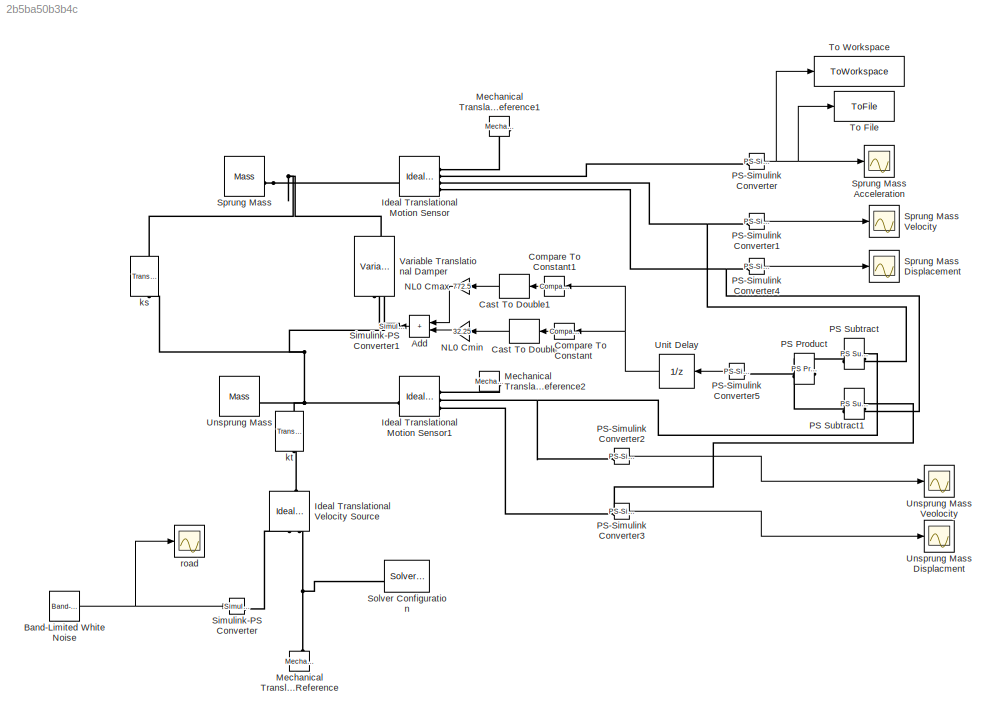
MODEL slx_2b5ba50b3b4c
KIND model
CONFIG AbsTol = 1e-3
CONFIG EnableMultiTasking = off
CONFIG FixedStep = 0.001
CONFIG MaxStep = auto
CONFIG MinStep = auto
CONFIG RelTol = 1e-3
CONFIG SampleTimeConstraint = Unconstrained
CONFIG SolverName = FixedStepAuto
CONFIG StartTime = 0.0
CONFIG StopTime = 100
BLOCK [Sum] Add
  IconShape = rectangular
  NameLocation = top
BLOCK [Reference] Band-Limited White Noise  REF=simulink/Sources/Band-Limited
White Noise
  SourceBlock = simulink/Sources/Band-Limited\nWhite Noise
  SourceType = Band-Limited White Noise.
BLOCK [DataTypeConversion] Cast To Double
  NameLocation = top
  OutDataTypeStr = double
  RndMeth = Floor
  SaturateOnIntegerOverflow = off
BLOCK [DataTypeConversion] Cast To Double1
  NameLocation = top
  OutDataTypeStr = double
  RndMeth = Floor
  SaturateOnIntegerOverflow = off
BLOCK [Reference] Compare To Constant  REF=simulink/Logic and Bit
Operations/Compare
To Constant
  NameLocation = top
  SourceBlock = simulink/Logic and Bit\nOperations/Compare\nTo Constant
  SourceType = Compare To Constant
BLOCK [Reference] Compare To Constant1  REF=simulink/Logic and Bit
Operations/Compare
To Constant
  NameLocation = top
  SourceBlock = simulink/Logic and Bit\nOperations/Compare\nTo Constant
  SourceType = Compare To Constant
BLOCK [Reference] Ideal Translational Motion Sensor  REF=fl_lib/Mechanical/Mechanical Sensors/Ideal Translational
Motion Sensor
  SourceBlock = fl_lib/Mechanical/Mechanical Sensors/Ideal Translational\nMotion Sensor
  SourceType = Ideal Translational\nMotion Sensor
BLOCK [Reference] Ideal Translational Motion Sensor1  REF=fl_lib/Mechanical/Mechanical Sensors/Ideal Translational
Motion Sensor
  SourceBlock = fl_lib/Mechanical/Mechanical Sensors/Ideal Translational\nMotion Sensor
  SourceType = Ideal Translational\nMotion Sensor
BLOCK [Reference] Ideal Translational Velocity Source  REF=fl_lib/Mechanical/Mechanical Sources/Ideal Translational
Velocity Source
  NameLocation = right
  SourceBlock = fl_lib/Mechanical/Mechanical Sources/Ideal Translational\nVelocity Source
  SourceType = Ideal Translational\nVelocity Source
BLOCK [Reference] Mechanical Translational Reference  REF=fl_lib/Mechanical/Translational
Elements/Mechanical
Translational
Reference
  NameLocation = right
  SourceBlock = fl_lib/Mechanical/Translational\nElements/Mechanical\nTranslational\nReference
  SourceType = Mechanical\nTranslational\nReference
BLOCK [Reference] Mechanical Translational Reference1  REF=fl_lib/Mechanical/Translational
Elements/Mechanical
Translational
Reference
  NameLocation = top
  SourceBlock = fl_lib/Mechanical/Translational\nElements/Mechanical\nTranslational\nReference
  SourceType = Mechanical\nTranslational\nReference
BLOCK [Reference] Mechanical Translational Reference2  REF=fl_lib/Mechanical/Translational
Elements/Mechanical
Translational
Reference
  NameLocation = top
  SourceBlock = fl_lib/Mechanical/Translational\nElements/Mechanical\nTranslational\nReference
  SourceType = Mechanical\nTranslational\nReference
BLOCK [Gain] NL0 Cmax
  Gain = 772.5
  NameLocation = top
BLOCK [Gain] NL0 Cmin
  Gain = 32.25
BLOCK [Reference] PS Product  REF=fl_lib/Physical Signals/Functions/PS Product
  NameLocation = top
  SourceBlock = fl_lib/Physical Signals/Functions/PS Product
  SourceType = PS Product
BLOCK [Reference] PS Subtract  REF=fl_lib/Physical Signals/Functions/PS Subtract
  NameLocation = top
  SourceBlock = fl_lib/Physical Signals/Functions/PS Subtract
  SourceType = PS Subtract
BLOCK [Reference] PS Subtract1  REF=fl_lib/Physical Signals/Functions/PS Subtract
  NameLocation = top
  SourceBlock = fl_lib/Physical Signals/Functions/PS Subtract
  SourceType = PS Subtract
BLOCK [Reference] PS-Simulink Converter  REF=nesl_utility/PS-Simulink
Converter
  SourceBlock = nesl_utility/PS-Simulink\nConverter
  SourceType = PS-Simulink\nConverter
BLOCK [Reference] PS-Simulink Converter1  REF=nesl_utility/PS-Simulink
Converter
  SourceBlock = nesl_utility/PS-Simulink\nConverter
  SourceType = PS-Simulink\nConverter
BLOCK [Reference] PS-Simulink Converter2  REF=nesl_utility/PS-Simulink
Converter
  SourceBlock = nesl_utility/PS-Simulink\nConverter
  SourceType = PS-Simulink\nConverter
BLOCK [Reference] PS-Simulink Converter3  REF=nesl_utility/PS-Simulink
Converter
  SourceBlock = nesl_utility/PS-Simulink\nConverter
  SourceType = PS-Simulink\nConverter
BLOCK [Reference] PS-Simulink Converter4  REF=nesl_utility/PS-Simulink
Converter
  SourceBlock = nesl_utility/PS-Simulink\nConverter
  SourceType = PS-Simulink\nConverter
BLOCK [Reference] PS-Simulink Converter5  REF=nesl_utility/PS-Simulink
Converter
  NameLocation = top
  SourceBlock = nesl_utility/PS-Simulink\nConverter
  SourceType = PS-Simulink\nConverter
BLOCK [Reference] Simulink-PS Converter  REF=nesl_utility/Simulink-PS
Converter
  SourceBlock = nesl_utility/Simulink-PS\nConverter
  SourceType = Simulink-PS\nConverter
BLOCK [Reference] Simulink-PS Converter1  REF=nesl_utility/Simulink-PS
Converter
  NameLocation = top
  SourceBlock = nesl_utility/Simulink-PS\nConverter
  SourceType = Simulink-PS\nConverter
BLOCK [Reference] Solver Configuration  REF=nesl_utility/Solver
Configuration
  NameLocation = top
  SourceBlock = nesl_utility/Solver\nConfiguration
  SourceType = Solver\nConfiguration
BLOCK [Reference] Sprung Mass  REF=fl_lib/Mechanical/Translational
Elements/Mass
  NameLocation = top
  SourceBlock = fl_lib/Mechanical/Translational\nElements/Mass
  SourceType = Mass
BLOCK [Scope] Sprung Mass Acceleration
  Floating = off
  NameLocation = right
  NumInputPorts = 1
  ScopeSpecificationString = Simulink.scopes.TimeScopeBlockCfg('CurrentConfiguration', extmgr.ConfigurationSet(extmgr.Configuration('Core','General UI',true),extmgr.Configuration('Core','Source UI',true),extmgr.Configuration('Sources','WiredSimulink',true),extmgr.Configuration('Visuals','Time Domain',true,'SerializedDisplays',{struct('MinYLimReal','-0.01651','MaxYLimReal','0.01298','YLabelReal','','MinYLimMag','0.00000','MaxY...<+1459ch>
BLOCK [Scope] Sprung Mass Displacement
  Floating = off
  NameLocation = right
  NumInputPorts = 1
  ScopeSpecificationString = Simulink.scopes.TimeScopeBlockCfg('CurrentConfiguration', extmgr.ConfigurationSet(extmgr.Configuration('Core','General UI',true),extmgr.Configuration('Core','Source UI',true),extmgr.Configuration('Sources','WiredSimulink',true,'DataLoggingVariableName','ScopeData4'),extmgr.Configuration('Visuals','Time Domain',true,'SerializedDisplays',{struct('MinYLimReal','-0.00019','MaxYLimReal','0.00007','YLab...<+1497ch>
BLOCK [Scope] Sprung Mass Velocity
  Floating = off
  NameLocation = right
  NumInputPorts = 1
  ScopeSpecificationString = Simulink.scopes.TimeScopeBlockCfg('CurrentConfiguration', extmgr.ConfigurationSet(extmgr.Configuration('Core','General UI',true),extmgr.Configuration('Core','Source UI',true),extmgr.Configuration('Sources','WiredSimulink',true,'DataLoggingVariableName','ScopeData1'),extmgr.Configuration('Visuals','Time Domain',true,'SerializedDisplays',{struct('MinYLimReal','-0.00062','MaxYLimReal','0.00077','YLab...<+1497ch>
BLOCK [ToFile] To File
  Filename = NL0acc_data.mat
  MatrixName = Ms_acc
  SaveFormat = Timeseries
BLOCK [ToWorkspace] To Workspace
  FixptAsFi = on
  MaxDataPoints = inf
  SampleTime = -1
  SaveFormat = Timeseries
  VariableName = acc
BLOCK [UnitDelay] Unit Delay
  HasFrameUpgradeWarning = on
  NameLocation = top
  SampleTime = -1
BLOCK [Reference] Unsprung Mass  REF=fl_lib/Mechanical/Translational
Elements/Mass
  SourceBlock = fl_lib/Mechanical/Translational\nElements/Mass
  SourceType = Mass
BLOCK [Scope] Unsprung Mass Displacment
  Floating = off
  NameLocation = right
  NumInputPorts = 1
  ScopeSpecificationString = Simulink.scopes.TimeScopeBlockCfg('CurrentConfiguration', extmgr.ConfigurationSet(extmgr.Configuration('Core','General UI',true),extmgr.Configuration('Core','Source UI',true),extmgr.Configuration('Sources','WiredSimulink',true,'DataLoggingVariableName','ScopeData3'),extmgr.Configuration('Visuals','Time Domain',true),extmgr.Configuration('Tools','Plot Navigation',true),extmgr.Configuration('Tools',...<+40ch>
BLOCK [Scope] Unsprung Mass Veolocity
  Floating = off
  NameLocation = right
  NumInputPorts = 1
  ScopeSpecificationString = Simulink.scopes.TimeScopeBlockCfg('CurrentConfiguration', extmgr.ConfigurationSet(extmgr.Configuration('Core','General UI',true),extmgr.Configuration('Core','Source UI',true),extmgr.Configuration('Sources','WiredSimulink',true,'DataLoggingVariableName','ScopeData2'),extmgr.Configuration('Visuals','Time Domain',true,'SerializedDisplays',{struct('MinYLimReal','-0.11261','MaxYLimReal','0.11449','YLab...<+1381ch>
BLOCK [Reference] Variable Translational Damper  REF=sdl_lib/Couplings & Drives/Springs & Dampers/Variable
Translational Damper
  NameLocation = right
  SourceBlock = sdl_lib/Couplings & Drives/Springs & Dampers/Variable\nTranslational Damper
  SourceType = Variable\nTranslational Damper
BLOCK [Reference] ks  REF=fl_lib/Mechanical/Translational
Elements/Translational Spring
  NameLocation = right
  SourceBlock = fl_lib/Mechanical/Translational\nElements/Translational Spring
  SourceType = Translational Spring
BLOCK [Reference] kt  REF=fl_lib/Mechanical/Translational
Elements/Translational Spring
  NameLocation = right
  SourceBlock = fl_lib/Mechanical/Translational\nElements/Translational Spring
  SourceType = Translational Spring
BLOCK [Scope] road
  Floating = off
  NameLocation = right
  NumInputPorts = 1
  ScopeSpecificationString = Simulink.scopes.TimeScopeBlockCfg('CurrentConfiguration', extmgr.ConfigurationSet(extmgr.Configuration('Core','General UI',true),extmgr.Configuration('Core','Source UI',true),extmgr.Configuration('Sources','WiredSimulink',true,'DataLoggingVariableName','ScopeData1'),extmgr.Configuration('Visuals','Time Domain',true,'SerializedDisplays',{struct('MinYLimReal','-0.01342','MaxYLimReal','0.01336','YLab...<+1486ch>
LINE Add:1 -> Simulink-PS Converter1:1
NET Band-Limited White Noise:1 -> Simulink-PS Converter:1, road:1
LINE Cast To Double1:1 -> NL0 Cmax:1
LINE Cast To Double:1 -> NL0 Cmin:1
LINE Compare To Constant1:1 -> Cast To Double1:1
LINE Compare To Constant:1 -> Cast To Double:1
LINE NL0 Cmax:1 -> Add:1
LINE NL0 Cmin:1 -> Add:2
LINE PS-Simulink Converter1:1 -> Sprung Mass Velocity:1
LINE PS-Simulink Converter2:1 -> Unsprung Mass Veolocity:1
LINE PS-Simulink Converter3:1 -> Unsprung Mass Displacment:1
LINE PS-Simulink Converter4:1 -> Sprung Mass Displacement:1
LINE PS-Simulink Converter5:1 -> Unit Delay:1
NET PS-Simulink Converter:1 -> Sprung Mass Acceleration:1, To File:1, To Workspace:1
NET Unit Delay:1 -> Compare To Constant1:1, Compare To Constant:1
PNET net1: Ideal Translational Motion Sensor1:LConn1 -- Unsprung Mass:LConn1 -- Variable Translational Damper:LConn2 -- ks:LConn1 -- kt:RConn1
PLINE Ideal Translational Motion Sensor1:RConn1 -- Mechanical Translational Reference2:LConn1
PNET net2: Ideal Translational Motion Sensor1:RConn2 -- PS Subtract:LConn1 -- PS-Simulink Converter2:LConn1
PNET net3: Ideal Translational Motion Sensor1:RConn3 -- PS Subtract1:LConn1 -- PS-Simulink Converter3:LConn1
PNET net4: Ideal Translational Motion Sensor:LConn1 -- Sprung Mass:LConn1 -- Variable Translational Damper:RConn1 -- ks:RConn1
PLINE Ideal Translational Motion Sensor:RConn1 -- Mechanical Translational Reference1:LConn1
PLINE Ideal Translational Motion Sensor:RConn2 -- PS-Simulink Converter:LConn1
PNET net5: Ideal Translational Motion Sensor:RConn3 -- PS Subtract:LConn2 -- PS-Simulink Converter1:LConn1
PNET net6: Ideal Translational Motion Sensor:RConn4 -- PS Subtract1:LConn2 -- PS-Simulink Converter4:LConn1
PLINE Ideal Translational Velocity Source:LConn1 -- kt:LConn1
PLINE Ideal Translational Velocity Source:RConn1 -- Simulink-PS Converter:RConn1
PNET net7: Ideal Translational Velocity Source:RConn2 -- Mechanical Translational Reference:LConn1 -- Solver Configuration:RConn1
PLINE PS Product:LConn1 -- PS Subtract1:RConn1
PLINE PS Product:LConn2 -- PS Subtract:RConn1
PLINE PS Product:RConn1 -- PS-Simulink Converter5:LConn1
PLINE Simulink-PS Converter1:RConn1 -- Variable Translational Damper:LConn1
note: NET lines group one-source signal fan-out (src -> all destinations, sorted); 1:1 wires keep LINE; PNET lines group multi-terminal physical nets as a canonical sorted terminal list (undirected conserving connections); 2-terminal nets keep the pairwise PLINE form
